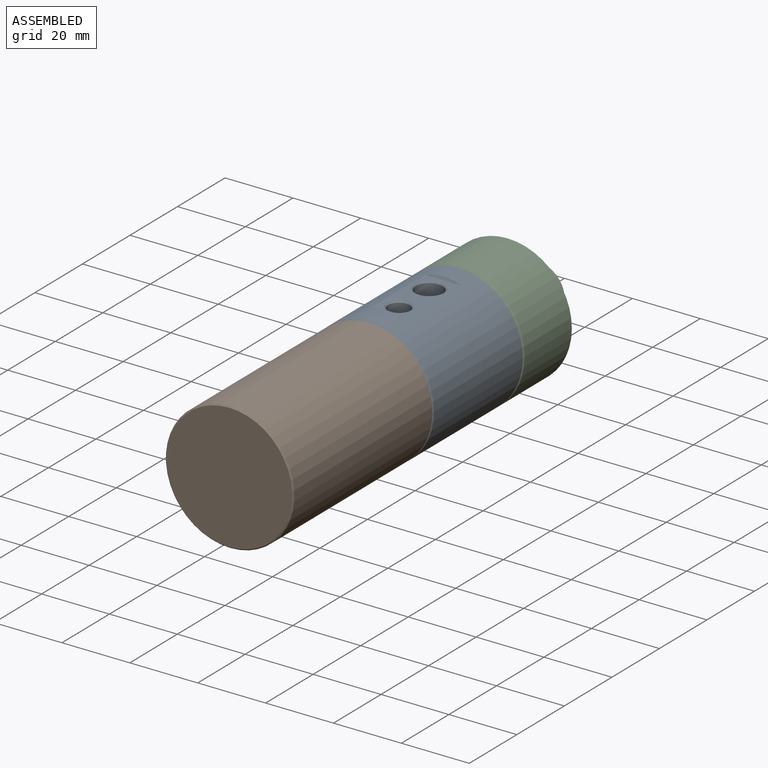
[diagram: assembled view]
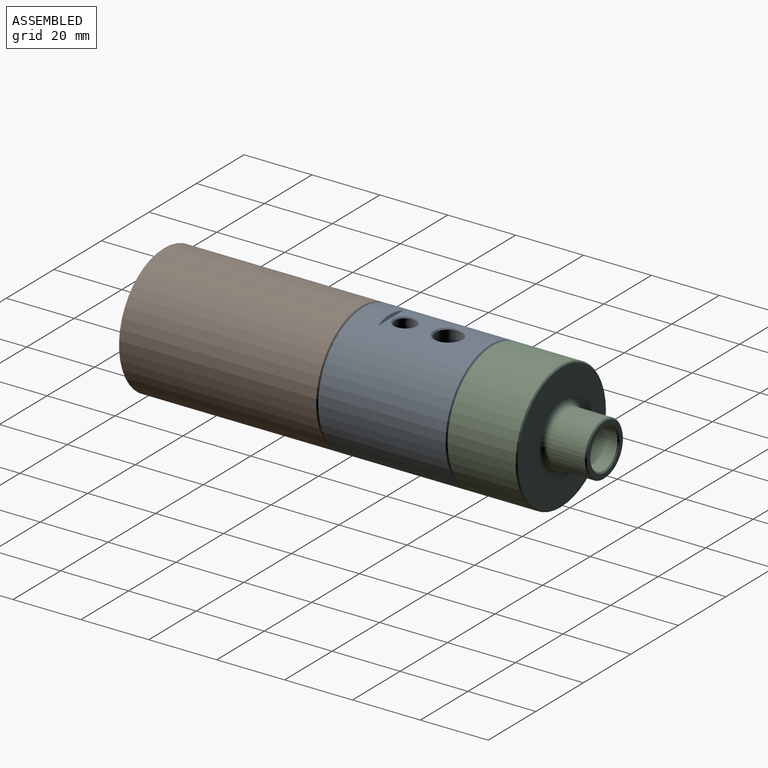
[diagram: assembled view, second angle]
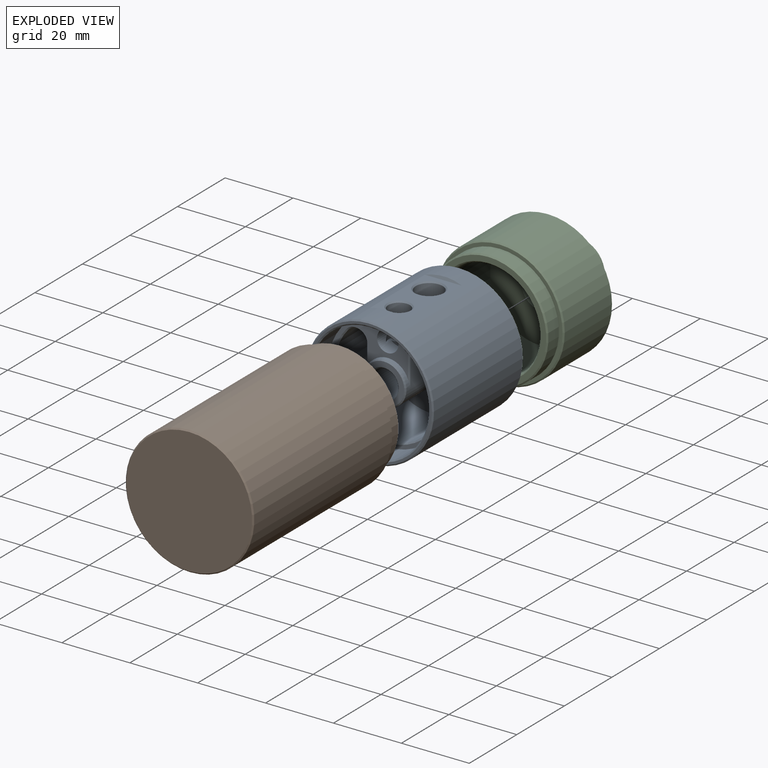
[diagram: exploded view]
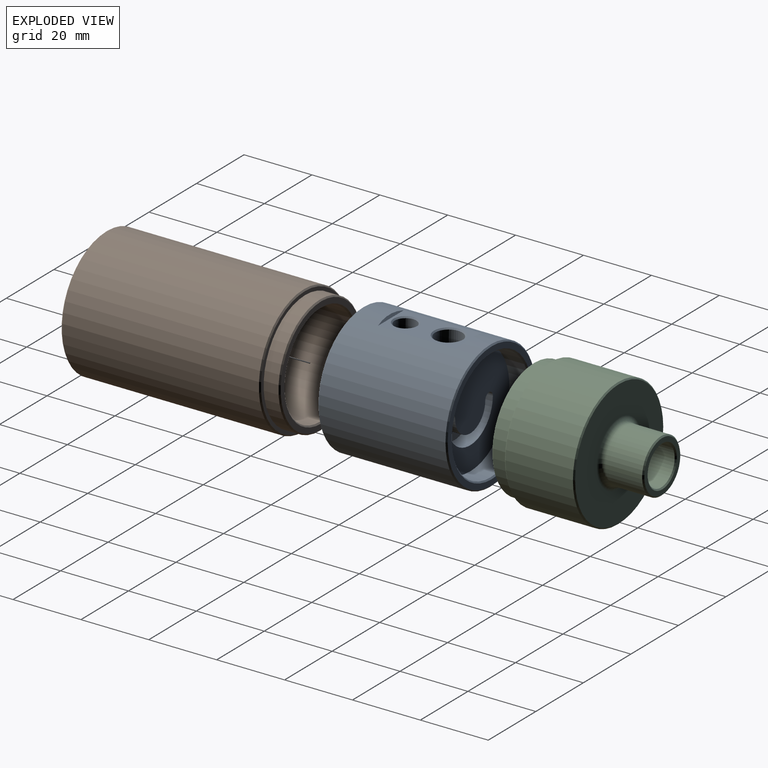
[diagram: exploded view, second angle]
ASSEMBLY  parts=3 mates=2
PART A: 47 faces, bbox 38.8x39x38.8 mm
  f0: cylinder r=6.35mm len=25.02mm, axis (0,-1,0), area 524mm2, adj f1,f10,f11,f12,f42,f43,f44,f45
  f1: cylinder r=1.59mm len=4.76mm, axis (0,1,0), area 23.8mm2, adj f0,f2,f9,f45
  f2: plane 31.75x27.45mm, normal (0,-1,0), area 425.3mm2, adj f1,f3,f7,f8,f9,f10,f43,f44
  f3: cylinder r=3.17mm len=18.67mm, axis (0,-1,0), area 143.4mm2, adj f2,f4,f7,f43
  f4: cone r=3.56mm half-angle=45deg, axis (0,-1,0), area 4.4mm2, adj f3,f5,f12,f42
  f5: cone r=16.26mm half-angle=45deg, axis (0,-1,0), area 39.7mm2, adj f4,f6,f7,f12
  f6: cone r=3.56mm half-angle=45deg, axis (0,-1,0), area 4.4mm2, adj f5,f8,f11,f12
  f7: cylinder r=15.88mm len=31.75mm, axis (0,-1,0), area 1359.5mm2, adj f2,f3,f5,f8
  f8: cylinder r=3.17mm len=18.67mm, axis (0,-1,0), area 143.4mm2, adj f2,f6,f7,f10
  f9: cylinder r=9.53mm len=19.05mm, axis (0,1,0), area 142.5mm2, adj f1,f2,f44,f45
  f10: plane 18.67x8.4mm, normal (-1,0,0), area 156.8mm2, adj f0,f2,f8,f11
  f11: plane 8.59x0.57mm, normal (-0.71,-0.71,0), area 3.7mm2, adj f0,f6,f10,f12
  f12: plane 34.93x34.93mm, normal (0,-1,0), area 247.7mm2, adj f0,f4,f5,f6,f11,f13,f41,f42
  f13: cylinder r=17.46mm len=34.93mm, axis (0,-1,0), area 829.1mm2, adj f12,f14
  f14: cone r=17.46mm half-angle=45deg, axis (0,-1,0), area 59.8mm2, adj f13,f15
  f15: plane 37.08x37.08mm, normal (0,-1,0), area 79.8mm2, adj f14,f16
  f16: cone r=18.54mm half-angle=45deg, axis (0,1,0), area 63.4mm2, adj f15,f17
  f17: cylinder r=18.92mm len=37.85mm, axis (0,1,0), area 4187.5mm2, adj f16,f18,f19,f36,f37
  f18: plane 11.76x1.71mm, normal (0,-0.87,0.5), area 6.7mm2, adj f17,f19
  f19: plane 22.9x10.85mm, normal (0,0,1), area 149.2mm2, adj f17,f18,f20,f31,f36
  f20: cone r=3.97mm half-angle=45deg, axis (0,0,1), area 14.1mm2, adj f19,f21
  f21: cylinder r=3.97mm len=18.67mm, axis (0,0,1), area 404.1mm2, adj f20,f22,f23,f24
  f22: cone r=0mm half-angle=59deg, axis (0,0,1), area 3mm2, adj f21,f23
  f23: plane 7.94x7.14mm, normal (0,-1,0), area 25.9mm2, adj f21,f22,f24
  f24: cylinder r=3.97mm len=21.84mm, axis (0,-1,0), area 483.4mm2, adj f21,f23,f25,f27,f28,f29,f30
  f25: cone r=3.97mm half-angle=45deg, axis (0,-1,0), area 14.1mm2, adj f24,f26
  f26: plane 11.94x11.94mm, normal (0,-1,0), area 52.5mm2, adj f25,f46
  f27: cone r=0mm half-angle=59deg, axis (0,0,1), area 0mm2, adj f24,f28
  f28: cylinder r=3.97mm len=1.84mm, axis (0,0,1), area 0.9mm2, adj f24,f27
  f29: cone r=0mm half-angle=59deg, axis (0,0,1), area 0mm2, adj f24,f30
  f30: cylinder r=3.97mm len=1.84mm, axis (0,0,1), area 0.9mm2, adj f24,f29
  f31: cone r=3.17mm half-angle=45deg, axis (0,0,1), area 11.4mm2, adj f19,f32
  f32: cylinder r=3.17mm len=9.14mm, axis (0,0,1), area 143.1mm2, adj f31,f33,f35,f41
  f33: plane 6.35x5.37mm, normal (0,0,1), area 18.5mm2, adj f32,f34,f35,f41
  f34: plane 4.6x0.98mm, normal (0,-1,0), area 3.1mm2, adj f33,f41
  f35: cylinder r=3.17mm len=2.19mm, axis (0,0,1), area 2.6mm2, adj f32,f33,f41
  f36: plane 11.76x1.71mm, normal (0,0.87,0.5), area 6.7mm2, adj f17,f19
  f37: cone r=18.92mm half-angle=45deg, axis (0,-1,0), area 63.4mm2, adj f17,f38
  f38: plane 37.08x37.08mm, normal (0,1,0), area 187.8mm2, adj f37,f39
  f39: cone r=16.47mm half-angle=45deg, axis (0,1,0), area 56.4mm2, adj f38,f40
  f40: cylinder r=16.47mm len=32.94mm, axis (0,1,0), area 617.8mm2, adj f39,f45
  f41: cylinder r=3.17mm len=6.35mm, axis (0,-1,0), area 69.5mm2, adj f12,f32,f33,f34,f35
  f42: plane 8.59x0.57mm, normal (0.71,-0.71,0), area 3.7mm2, adj f0,f4,f12,f43
  f43: plane 18.67x8.4mm, normal (1,0,0), area 156.8mm2, adj f0,f2,f3,f42
  f44: cylinder r=1.59mm len=4.76mm, axis (0,1,0), area 23.8mm2, adj f0,f2,f9,f45
  f45: plane 32.94x32.94mm, normal (0,1,0), area 765.3mm2, adj f0,f1,f9,f40,f44
  f46: cone r=6.35mm half-angle=45deg, axis (0,1,0), area 20.9mm2, adj f0,f26
PART B: 11 faces, bbox 37.8x63.5x37.8 mm
  f0: plane 34.16x34.16mm, normal (0,1,0), area 165.6mm2, adj f9,f10
  f1: cylinder r=15.08mm len=59.94mm, axis (0,1,0), area 5680.2mm2, adj f2,f10
  f2: plane 30.16x30.16mm, normal (0,1,0), area 714.5mm2, adj f1
  f3: cylinder r=17.46mm len=34.93mm, axis (0,1,0), area 480.7mm2, adj f4,f9
  f4: plane 37.08x37.08mm, normal (0,1,0), area 122.1mm2, adj f3,f8
  f5: plane 37.08x37.08mm, normal (0,-1,0), area 1080.1mm2, adj f7
  f6: cylinder r=18.92mm len=57.98mm, axis (0,1,0), area 6893.1mm2, adj f7,f8
  f7: cone r=18.54mm half-angle=45deg, axis (0,1,0), area 63.4mm2, adj f5,f6
  f8: cone r=18.92mm half-angle=45deg, axis (0,-1,0), area 63.4mm2, adj f4,f6
  f9: cone r=17.46mm half-angle=45deg, axis (0,-1,0), area 58.5mm2, adj f0,f3
  f10: cone r=15.46mm half-angle=45deg, axis (0,1,0), area 51.7mm2, adj f0,f1
PART C: 17 faces, bbox 37.8x38.1x37.8 mm
  f0: cylinder r=18.92mm len=37.85mm, axis (0,1,0), area 2363.1mm2, adj f9,f14
  f1: plane 34.16x34.16mm, normal (0,-1,0), area 165.6mm2, adj f8,f15
  f2: plane 37.08x37.08mm, normal (0,1,0), area 795.1mm2, adj f9,f16
  f3: cylinder r=15.08mm len=30.16mm, axis (0,-1,0), area 2069.9mm2, adj f4,f8
  f4: plane 30.16x30.16mm, normal (0,-1,0), area 610.5mm2, adj f3,f7
  f5: cylinder r=7.94mm len=15.88mm, axis (0,-1,0), area 535.2mm2, adj f11,f16
  f6: plane 15.11x15.11mm, normal (0,1,0), area 61.1mm2, adj f10,f11
  f7: cylinder r=5.75mm len=15.49mm, axis (0,1,0), area 560.2mm2, adj f4,f10
  f8: cone r=15.08mm half-angle=45deg, axis (0,-1,0), area 51.7mm2, adj f1,f3
  f9: cone r=18.92mm half-angle=45deg, axis (0,-1,0), area 63.4mm2, adj f0,f2
  f10: cone r=5.75mm half-angle=45deg, axis (0,1,0), area 20.1mm2, adj f6,f7
  f11: cone r=7.56mm half-angle=45deg, axis (0,-1,0), area 26.2mm2, adj f5,f6
  f12: cylinder r=17.46mm len=34.93mm, axis (0,-1,0), area 480.7mm2, adj f13,f15
  f13: plane 37.08x37.08mm, normal (0,-1,0), area 122.1mm2, adj f12,f14
  f14: cone r=18.54mm half-angle=45deg, axis (0,1,0), area 63.4mm2, adj f0,f13
  f15: cone r=17.08mm half-angle=45deg, axis (0,1,0), area 58.5mm2, adj f1,f12
  f16: torus R=9.53mm, axis (0,-1,0), area 133.4mm2, adj f2,f5
PLACE A t=(-35.19,-77.71,-2.75)mm
PLACE B t=(-35.19,3.25,-2.75)mm
PLACE C t=(-35.19,-95.17,-2.75)mm
MATE fastened C.f3 <-> A.f9  axis (0,-1,0) through (-35.19,-39.61,-2.75)mm
MATE fastened A.f16 <-> B.f6  axis (0,-1,0) through (-35.19,-77.71,-2.75)mm
